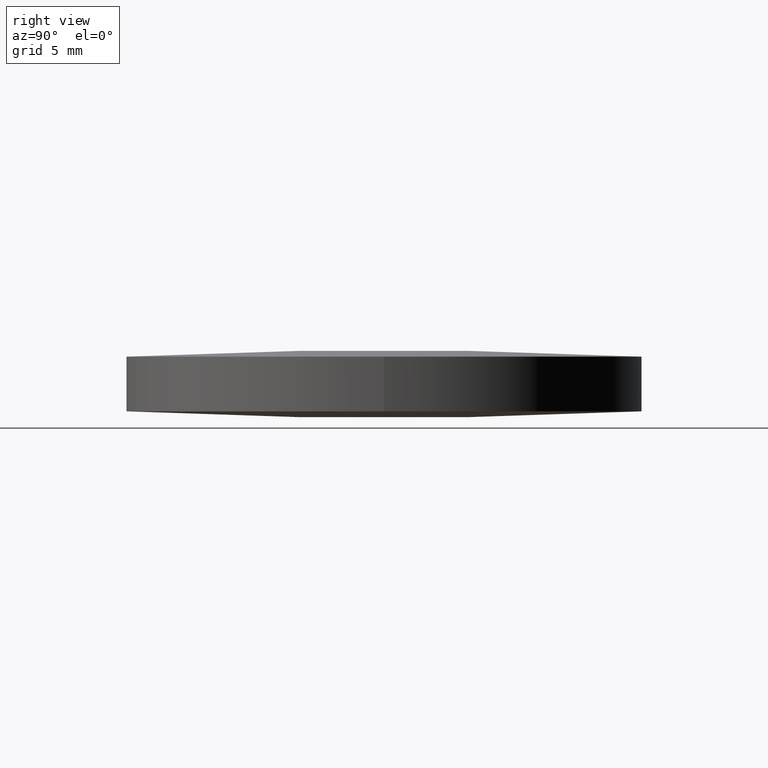
[diagram: clean part render]
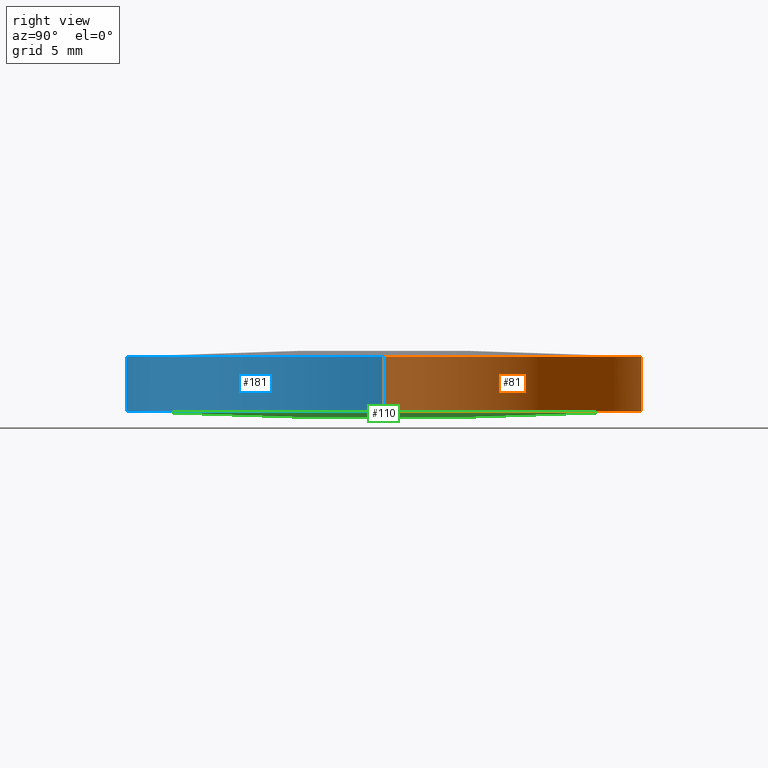
[diagram: same view with three faces highlighted in distinct colors, each labeled with its STEP entity id]
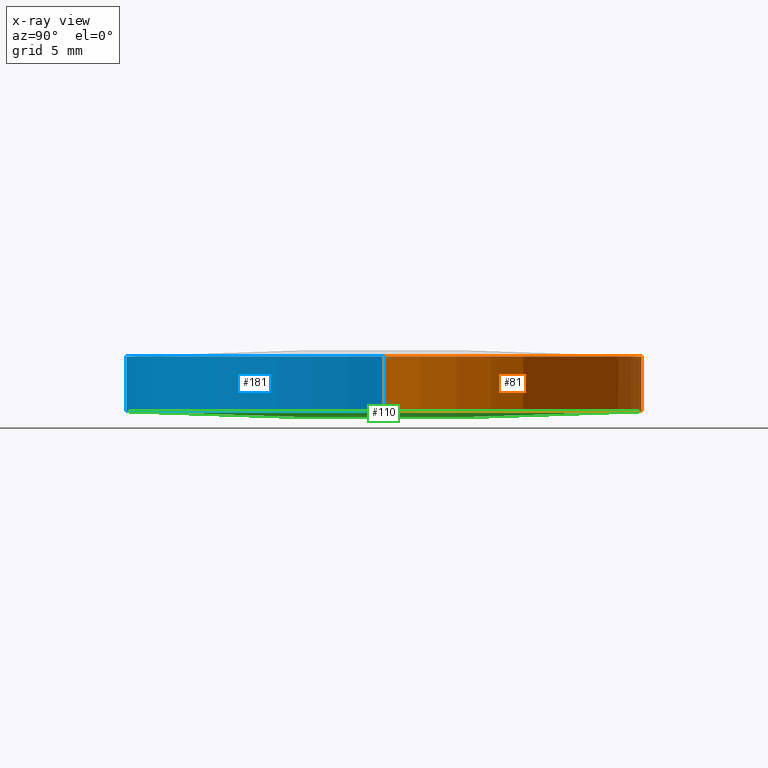
[diagram: x-ray of the same camera — body ghosted, the three highlighted faces saturated]
A machine part, right view with three faces highlighted in distinct colors.
The next image is the same camera in x-ray (body ghosted, the three faces saturated) — at least one of them is partly hidden behind the body in this view.
Their STEP definitions:

[orange] entity #81 — the highlighted cylindrical surface (partial cylindrical patch) has radius 19.05 mm, axis along (0, 0, 1).
#4 = EDGE_LOOP ( 'NONE', ( #89, #43, #111, #147, #232, #107 ) ) ;
#6 = LINE ( 'NONE', #42, #237 ) ;
#17 = DIRECTION ( 'NONE',  ( 1.000000000000000000, 8.881784197001252300E-016, 0.0000000000000000000 ) ) ;
#20 = CARTESIAN_POINT ( 'NONE',  ( 19.04999999999999700, -8.881784197001250400E-016, 0.4778036794158739800 ) ) ;
#42 = CARTESIAN_POINT ( 'NONE',  ( -19.05000000000000400, 1.444773732675583000E-015, 0.4778036794158739800 ) ) ;
#43 = ORIENTED_EDGE ( 'NONE', *, *, #149, .T. ) ;
#46 = EDGE_CURVE ( 'NONE', #213, #211, #260, .T. ) ;
#63 = EDGE_CURVE ( 'NONE', #152, #194, #93, .T. ) ;
#66 = CARTESIAN_POINT ( 'NONE',  ( -19.05000000000000400, 1.444773732675583000E-015, 0.4778036794158739800 ) ) ;
#68 = VERTEX_POINT ( 'NONE', #243 ) ;
#72 = CIRCLE ( 'NONE', #98, 19.05000000000000100 ) ;
#78 = CIRCLE ( 'NONE', #145, 19.05000000000000100 ) ;
#81 = ADVANCED_FACE ( 'NONE', ( #254 ), #192, .T. ) ;
#89 = ORIENTED_EDGE ( 'NONE', *, *, #63, .F. ) ;
#91 = CARTESIAN_POINT ( 'NONE',  ( -5.125164675251374400E-014, 19.04999999999980500, 0.4778036794158371200 ) ) ;
#92 = CARTESIAN_POINT ( 'NONE',  ( -4.662936703425659800E-015, -8.881784197001250400E-016, 4.522196320584130000 ) ) ;
#93 = CIRCLE ( 'NONE', #210, 19.05000000000000100 ) ;
#98 = AXIS2_PLACEMENT_3D ( 'NONE', #134, #112, #246 ) ;
#107 = ORIENTED_EDGE ( 'NONE', *, *, #195, .F. ) ;
#108 = DIRECTION ( 'NONE',  ( 0.0000000000000000000, 0.0000000000000000000, 1.000000000000000000 ) ) ;
#111 = ORIENTED_EDGE ( 'NONE', *, *, #200, .T. ) ;
#112 = DIRECTION ( 'NONE',  ( -0.0000000000000000000, -0.0000000000000000000, -1.000000000000000000 ) ) ;
#114 = AXIS2_PLACEMENT_3D ( 'NONE', #158, #268, #175 ) ;
#124 = CIRCLE ( 'NONE', #269, 19.05000000000000100 ) ;
#127 = DIRECTION ( 'NONE',  ( -0.0000000000000000000, -0.0000000000000000000, -1.000000000000000000 ) ) ;
#133 = DIRECTION ( 'NONE',  ( -0.0000000000000000000, -0.0000000000000000000, -1.000000000000000000 ) ) ;
#134 = CARTESIAN_POINT ( 'NONE',  ( -4.662936703425659800E-015, -8.881784197001250400E-016, 0.4778036794158739800 ) ) ;
#145 = AXIS2_PLACEMENT_3D ( 'NONE', #273, #133, #205 ) ;
#147 = ORIENTED_EDGE ( 'NONE', *, *, #294, .T. ) ;
#149 = EDGE_CURVE ( 'NONE', #152, #68, #6, .T. ) ;
#152 = VERTEX_POINT ( 'NONE', #66 ) ;
#158 = CARTESIAN_POINT ( 'NONE',  ( -4.662936703425659800E-015, -8.881784197001250400E-016, 0.4778036794158739800 ) ) ;
#175 = DIRECTION ( 'NONE',  ( 1.000000000000000000, 0.0000000000000000000, 0.0000000000000000000 ) ) ;
#178 = DIRECTION ( 'NONE',  ( 0.0000000000000000000, 0.0000000000000000000, 1.000000000000000000 ) ) ;
#187 = VECTOR ( 'NONE', #178, 1000.000000000000000 ) ;
#192 = CYLINDRICAL_SURFACE ( 'NONE', #114, 19.05000000000000100 ) ;
#194 = VERTEX_POINT ( 'NONE', #91 ) ;
#195 = EDGE_CURVE ( 'NONE', #194, #213, #72, .T. ) ;
#200 = EDGE_CURVE ( 'NONE', #68, #209, #78, .T. ) ;
#205 = DIRECTION ( 'NONE',  ( 1.000000000000000000, 0.0000000000000000000, 0.0000000000000000000 ) ) ;
#209 = VERTEX_POINT ( 'NONE', #249 ) ;
#210 = AXIS2_PLACEMENT_3D ( 'NONE', #241, #127, #17 ) ;
#211 = VERTEX_POINT ( 'NONE', #253 ) ;
#213 = VERTEX_POINT ( 'NONE', #223 ) ;
#223 = CARTESIAN_POINT ( 'NONE',  ( 19.04999999999999700, -8.881784197001250400E-016, 0.4778036794158739800 ) ) ;
#232 = ORIENTED_EDGE ( 'NONE', *, *, #46, .F. ) ;
#237 = VECTOR ( 'NONE', #108, 1000.000000000000000 ) ;
#241 = CARTESIAN_POINT ( 'NONE',  ( -4.662936703425659800E-015, -8.881784197001250400E-016, 0.4778036794158739800 ) ) ;
#243 = CARTESIAN_POINT ( 'NONE',  ( -19.05000000000000400, 1.444773732675583000E-015, 4.522196320584130000 ) ) ;
#246 = DIRECTION ( 'NONE',  ( 1.000000000000000000, -8.881784197001252300E-016, 0.0000000000000000000 ) ) ;
#249 = CARTESIAN_POINT ( 'NONE',  ( 5.125164675251374400E-014, 19.04999999999980500, 4.522196320584167300 ) ) ;
#251 = DIRECTION ( 'NONE',  ( -0.0000000000000000000, -0.0000000000000000000, -1.000000000000000000 ) ) ;
#253 = CARTESIAN_POINT ( 'NONE',  ( 19.04999999999999700, -8.881784197001250400E-016, 4.522196320584130000 ) ) ;
#254 = FACE_OUTER_BOUND ( 'NONE', #4, .T. ) ;
#260 = LINE ( 'NONE', #20, #187 ) ;
#268 = DIRECTION ( 'NONE',  ( 0.0000000000000000000, 0.0000000000000000000, 1.000000000000000000 ) ) ;
#269 = AXIS2_PLACEMENT_3D ( 'NONE', #92, #251, #275 ) ;
#273 = CARTESIAN_POINT ( 'NONE',  ( -4.662936703425659800E-015, -8.881784197001250400E-016, 4.522196320584130000 ) ) ;
#275 = DIRECTION ( 'NONE',  ( 1.000000000000000000, -8.881784197001252300E-016, 0.0000000000000000000 ) ) ;
#294 = EDGE_CURVE ( 'NONE', #209, #211, #124, .T. ) ;

[blue] entity #181 — the highlighted cylindrical surface (partial cylindrical patch) has radius 19.05 mm, axis along (0, 0, 1).
#1 = DIRECTION ( 'NONE',  ( 0.0000000000000000000, 0.0000000000000000000, 1.000000000000000000 ) ) ;
#6 = LINE ( 'NONE', #42, #237 ) ;
#9 = VERTEX_POINT ( 'NONE', #79 ) ;
#20 = CARTESIAN_POINT ( 'NONE',  ( 19.04999999999999700, -8.881784197001250400E-016, 0.4778036794158739800 ) ) ;
#30 = CIRCLE ( 'NONE', #54, 19.05000000000000100 ) ;
#37 = EDGE_CURVE ( 'NONE', #213, #40, #30, .T. ) ;
#38 = ORIENTED_EDGE ( 'NONE', *, *, #149, .F. ) ;
#40 = VERTEX_POINT ( 'NONE', #88 ) ;
#42 = CARTESIAN_POINT ( 'NONE',  ( -19.05000000000000400, 1.444773732675583000E-015, 0.4778036794158739800 ) ) ;
#46 = EDGE_CURVE ( 'NONE', #213, #211, #260, .T. ) ;
#54 = AXIS2_PLACEMENT_3D ( 'NONE', #156, #130, #64 ) ;
#57 = AXIS2_PLACEMENT_3D ( 'NONE', #202, #219, #62 ) ;
#62 = DIRECTION ( 'NONE',  ( 1.000000000000000000, 0.0000000000000000000, 0.0000000000000000000 ) ) ;
#64 = DIRECTION ( 'NONE',  ( 1.000000000000000000, 0.0000000000000000000, 0.0000000000000000000 ) ) ;
#65 = CIRCLE ( 'NONE', #57, 19.05000000000000100 ) ;
#66 = CARTESIAN_POINT ( 'NONE',  ( -19.05000000000000400, 1.444773732675583000E-015, 0.4778036794158739800 ) ) ;
#68 = VERTEX_POINT ( 'NONE', #243 ) ;
#74 = EDGE_CURVE ( 'NONE', #9, #68, #97, .T. ) ;
#75 = EDGE_LOOP ( 'NONE', ( #38, #270, #143, #224, #286, #128 ) ) ;
#79 = CARTESIAN_POINT ( 'NONE',  ( 3.959762838265699500E-014, -19.04999999999978000, 4.522196320584167300 ) ) ;
#87 = AXIS2_PLACEMENT_3D ( 'NONE', #109, #131, #293 ) ;
#88 = CARTESIAN_POINT ( 'NONE',  ( -3.959762838265698800E-014, -19.04999999999978000, 0.4778036794158371200 ) ) ;
#97 = CIRCLE ( 'NONE', #87, 19.05000000000000100 ) ;
#108 = DIRECTION ( 'NONE',  ( 0.0000000000000000000, 0.0000000000000000000, 1.000000000000000000 ) ) ;
#109 = CARTESIAN_POINT ( 'NONE',  ( -4.662936703425659800E-015, -8.881784197001250400E-016, 4.522196320584130000 ) ) ;
#117 = AXIS2_PLACEMENT_3D ( 'NONE', #225, #295, #159 ) ;
#122 = EDGE_CURVE ( 'NONE', #40, #152, #65, .T. ) ;
#128 = ORIENTED_EDGE ( 'NONE', *, *, #74, .T. ) ;
#130 = DIRECTION ( 'NONE',  ( -0.0000000000000000000, -0.0000000000000000000, -1.000000000000000000 ) ) ;
#131 = DIRECTION ( 'NONE',  ( -0.0000000000000000000, -0.0000000000000000000, -1.000000000000000000 ) ) ;
#143 = ORIENTED_EDGE ( 'NONE', *, *, #37, .F. ) ;
#149 = EDGE_CURVE ( 'NONE', #152, #68, #6, .T. ) ;
#152 = VERTEX_POINT ( 'NONE', #66 ) ;
#156 = CARTESIAN_POINT ( 'NONE',  ( -4.662936703425659800E-015, -8.881784197001250400E-016, 0.4778036794158739800 ) ) ;
#159 = DIRECTION ( 'NONE',  ( 1.000000000000000000, 0.0000000000000000000, 0.0000000000000000000 ) ) ;
#164 = AXIS2_PLACEMENT_3D ( 'NONE', #186, #1, #222 ) ;
#178 = DIRECTION ( 'NONE',  ( 0.0000000000000000000, 0.0000000000000000000, 1.000000000000000000 ) ) ;
#181 = ADVANCED_FACE ( 'NONE', ( #199 ), #247, .T. ) ;
#186 = CARTESIAN_POINT ( 'NONE',  ( -4.662936703425659800E-015, -8.881784197001250400E-016, 0.4778036794158739800 ) ) ;
#187 = VECTOR ( 'NONE', #178, 1000.000000000000000 ) ;
#199 = FACE_OUTER_BOUND ( 'NONE', #75, .T. ) ;
#202 = CARTESIAN_POINT ( 'NONE',  ( -4.662936703425659800E-015, -8.881784197001250400E-016, 0.4778036794158739800 ) ) ;
#204 = CIRCLE ( 'NONE', #117, 19.05000000000000100 ) ;
#211 = VERTEX_POINT ( 'NONE', #253 ) ;
#213 = VERTEX_POINT ( 'NONE', #223 ) ;
#214 = EDGE_CURVE ( 'NONE', #211, #9, #204, .T. ) ;
#219 = DIRECTION ( 'NONE',  ( -0.0000000000000000000, -0.0000000000000000000, -1.000000000000000000 ) ) ;
#222 = DIRECTION ( 'NONE',  ( 1.000000000000000000, 0.0000000000000000000, 0.0000000000000000000 ) ) ;
#223 = CARTESIAN_POINT ( 'NONE',  ( 19.04999999999999700, -8.881784197001250400E-016, 0.4778036794158739800 ) ) ;
#224 = ORIENTED_EDGE ( 'NONE', *, *, #46, .T. ) ;
#225 = CARTESIAN_POINT ( 'NONE',  ( -4.662936703425659800E-015, -8.881784197001250400E-016, 4.522196320584130000 ) ) ;
#237 = VECTOR ( 'NONE', #108, 1000.000000000000000 ) ;
#243 = CARTESIAN_POINT ( 'NONE',  ( -19.05000000000000400, 1.444773732675583000E-015, 4.522196320584130000 ) ) ;
#247 = CYLINDRICAL_SURFACE ( 'NONE', #164, 19.05000000000000100 ) ;
#253 = CARTESIAN_POINT ( 'NONE',  ( 19.04999999999999700, -8.881784197001250400E-016, 4.522196320584130000 ) ) ;
#260 = LINE ( 'NONE', #20, #187 ) ;
#270 = ORIENTED_EDGE ( 'NONE', *, *, #122, .F. ) ;
#286 = ORIENTED_EDGE ( 'NONE', *, *, #214, .T. ) ;
#293 = DIRECTION ( 'NONE',  ( 1.000000000000000000, 0.0000000000000000000, 0.0000000000000000000 ) ) ;
#295 = DIRECTION ( 'NONE',  ( -0.0000000000000000000, -0.0000000000000000000, -1.000000000000000000 ) ) ;

[green] entity #110 — the highlighted face is a freeform B-spline surface patch.
#7 = EDGE_CURVE ( 'NONE', #40, #194, #99, .T. ) ;
#8 = AXIS2_PLACEMENT_3D ( 'NONE', #82, #123, #282 ) ;
#18 = ORIENTED_EDGE ( 'NONE', *, *, #195, .T. ) ;
#26 =( BOUNDED_SURFACE ( )  B_SPLINE_SURFACE ( 3, 3, ( 
 ( #103, #154, #217, #41 ),
 ( #83, #239, #266, #288 ),
 ( #153, #106, #201, #59 ),
 ( #218, #85, #240, #104 ) ),
 .UNSPECIFIED., .F., .F., .F. ) 
 B_SPLINE_SURFACE_WITH_KNOTS ( ( 4, 4 ),
 ( 4, 4 ),
 ( 0.0000000000000000000, 1.000000000000000000 ),
 ( 0.0000000000000000000, 1.000000000000000000 ),
 .UNSPECIFIED. ) 
 GEOMETRIC_REPRESENTATION_ITEM ( )  RATIONAL_B_SPLINE_SURFACE ( (
 ( 1.000000000000000000, 0.9997878814716106800, 0.9997878814716106800, 1.000000000000000000),
 ( 0.9991415135176726600, 0.9989295770901726000, 0.9989295770901726000, 0.9991415135176726600),
 ( 0.9991415135176726600, 0.9989295770901726000, 0.9989295770901726000, 0.9991415135176726600),
 ( 1.000000000000000000, 0.9997878814716106800, 0.9997878814716106800, 1.000000000000000000) ) ) 
 REPRESENTATION_ITEM ( '' )  SURFACE ( )  );
#30 = CIRCLE ( 'NONE', #54, 19.05000000000000100 ) ;
#37 = EDGE_CURVE ( 'NONE', #213, #40, #30, .T. ) ;
#40 = VERTEX_POINT ( 'NONE', #88 ) ;
#41 = CARTESIAN_POINT ( 'NONE',  ( 19.13952497321512800, -19.27840483950791000, 0.9722679134893471600 ) ) ;
#54 = AXIS2_PLACEMENT_3D ( 'NONE', #156, #130, #64 ) ;
#59 = CARTESIAN_POINT ( 'NONE',  ( 19.17243646021631800, 6.431656436612476200, 0.3205084630790748800 ) ) ;
#60 = FACE_OUTER_BOUND ( 'NONE', #234, .T. ) ;
#64 = DIRECTION ( 'NONE',  ( 1.000000000000000000, 0.0000000000000000000, 0.0000000000000000000 ) ) ;
#72 = CIRCLE ( 'NONE', #98, 19.05000000000000100 ) ;
#82 = CARTESIAN_POINT ( 'NONE',  ( -2.842170943040400100E-014, 2.842170943040400100E-014, 380.0000000000000000 ) ) ;
#83 = CARTESIAN_POINT ( 'NONE',  ( -4.348604400664740800E-014, -6.431656436612431800, -0.1632525817768165100 ) ) ;
#84 = ORIENTED_EDGE ( 'NONE', *, *, #7, .T. ) ;
#85 = CARTESIAN_POINT ( 'NONE',  ( 6.383226228310244100, 19.27840483950795700, 0.4893372949265615300 ) ) ;
#88 = CARTESIAN_POINT ( 'NONE',  ( -3.959762838265698800E-014, -19.04999999999978000, 0.4778036794158371200 ) ) ;
#91 = CARTESIAN_POINT ( 'NONE',  ( -5.125164675251374400E-014, 19.04999999999980500, 0.4778036794158371200 ) ) ;
#98 = AXIS2_PLACEMENT_3D ( 'NONE', #134, #112, #246 ) ;
#99 = CIRCLE ( 'NONE', #8, 380.0000000000000000 ) ;
#103 = CARTESIAN_POINT ( 'NONE',  ( -3.952724725196252700E-014, -19.27840483950791800, 0.4893372949265617500 ) ) ;
#104 = CARTESIAN_POINT ( 'NONE',  ( 19.13952497321511400, 19.27840483950796400, 0.9722679134893471600 ) ) ;
#106 = CARTESIAN_POINT ( 'NONE',  ( 6.394202543936295900, 6.431656436612470900, -0.1632525817768162300 ) ) ;
#110 = ADVANCED_FACE ( 'NONE', ( #60 ), #26, .T. ) ;
#112 = DIRECTION ( 'NONE',  ( -0.0000000000000000000, -0.0000000000000000000, -1.000000000000000000 ) ) ;
#123 = DIRECTION ( 'NONE',  ( 1.000000000000000000, 3.058797472403380000E-016, -4.480087937417740100E-017 ) ) ;
#130 = DIRECTION ( 'NONE',  ( -0.0000000000000000000, -0.0000000000000000000, -1.000000000000000000 ) ) ;
#134 = CARTESIAN_POINT ( 'NONE',  ( -4.662936703425659800E-015, -8.881784197001250400E-016, 0.4778036794158739800 ) ) ;
#153 = CARTESIAN_POINT ( 'NONE',  ( -4.742067089698283200E-014, 6.431656436612470000, -0.1632525817768159500 ) ) ;
#154 = CARTESIAN_POINT ( 'NONE',  ( 6.383226228310255700, -19.27840483950791000, 0.4893372949265615300 ) ) ;
#156 = CARTESIAN_POINT ( 'NONE',  ( -4.662936703425659800E-015, -8.881784197001250400E-016, 0.4778036794158739800 ) ) ;
#194 = VERTEX_POINT ( 'NONE', #91 ) ;
#195 = EDGE_CURVE ( 'NONE', #194, #213, #72, .T. ) ;
#201 = CARTESIAN_POINT ( 'NONE',  ( 12.78637059462188200, 6.431656436612473500, -0.001964688007516379500 ) ) ;
#213 = VERTEX_POINT ( 'NONE', #223 ) ;
#217 = CARTESIAN_POINT ( 'NONE',  ( 12.76442145578966600, -19.27840483950791000, 0.6503483212027676400 ) ) ;
#218 = CARTESIAN_POINT ( 'NONE',  ( -5.132099445097372400E-014, 19.27840483950795700, 0.4893372949265617500 ) ) ;
#223 = CARTESIAN_POINT ( 'NONE',  ( 19.04999999999999700, -8.881784197001250400E-016, 0.4778036794158739800 ) ) ;
#227 = ORIENTED_EDGE ( 'NONE', *, *, #37, .T. ) ;
#234 = EDGE_LOOP ( 'NONE', ( #227, #84, #18 ) ) ;
#239 = CARTESIAN_POINT ( 'NONE',  ( 6.394202543936300400, -6.431656436612430000, -0.1632525817768167900 ) ) ;
#240 = CARTESIAN_POINT ( 'NONE',  ( 12.76442145578965200, 19.27840483950795700, 0.6503483212027676400 ) ) ;
#246 = DIRECTION ( 'NONE',  ( 1.000000000000000000, -8.881784197001252300E-016, 0.0000000000000000000 ) ) ;
#266 = CARTESIAN_POINT ( 'NONE',  ( 12.78637059462188600, -6.431656436612427400, -0.001964688007516921600 ) ) ;
#282 = DIRECTION ( 'NONE',  ( 3.058797472403380500E-016, -1.000000000000000000, 2.921639538487254300E-016 ) ) ;
#288 = CARTESIAN_POINT ( 'NONE',  ( 19.17243646021632100, -6.431656436612426500, 0.3205084630790743200 ) ) ;